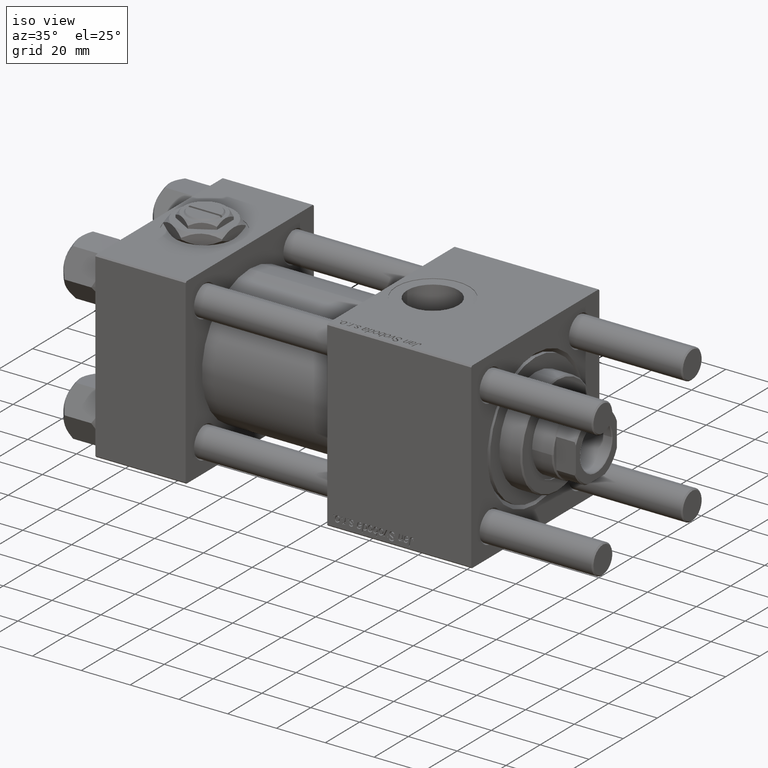
[diagram: clean part render]
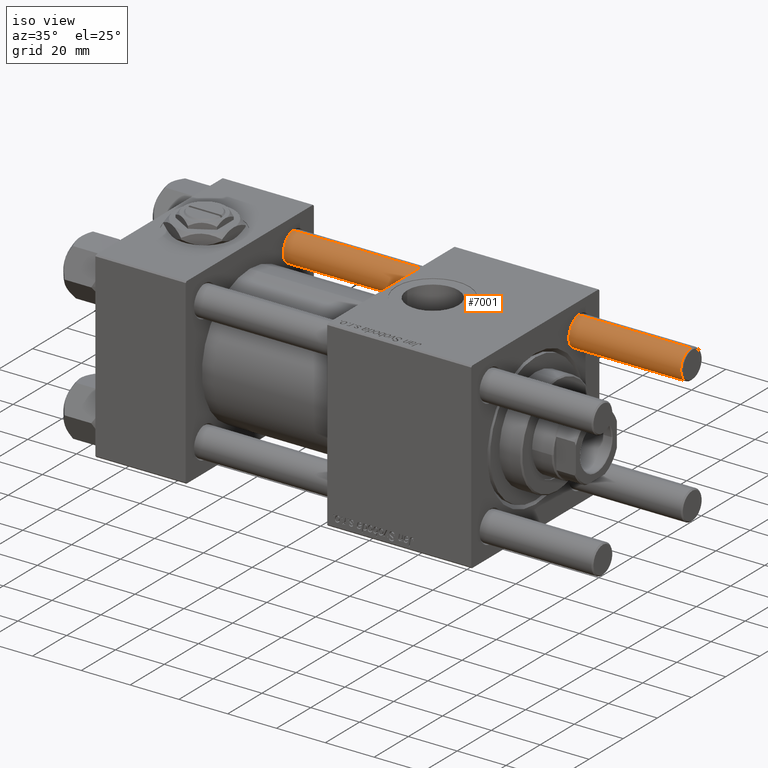
[diagram: same view with one face highlighted and labeled with its STEP entity id]
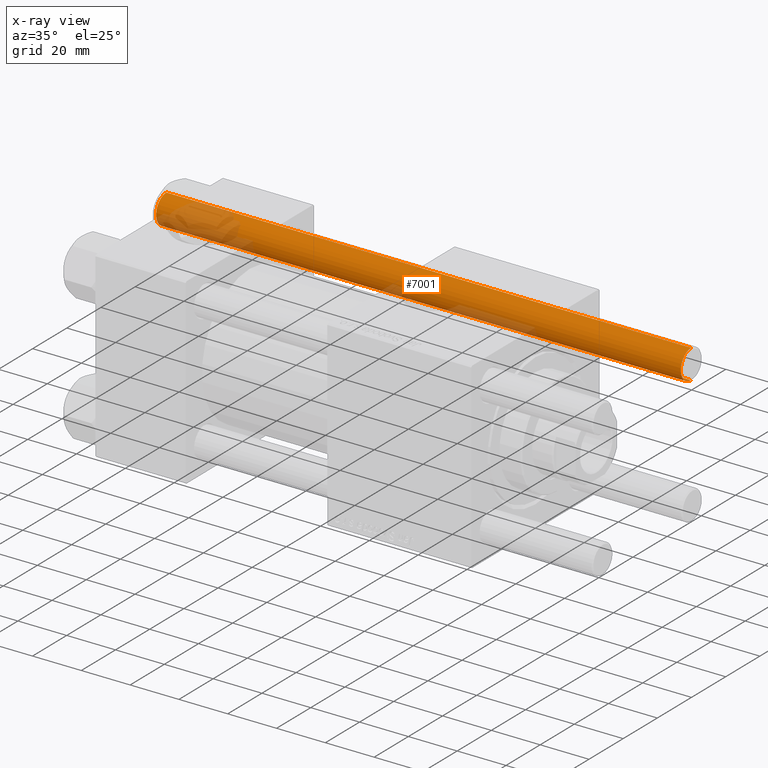
[diagram: x-ray of the same camera — body ghosted, the highlighted face saturated]
A machine part, iso view. The second image highlights one B-rep face of the part: STEP entity #7001.
The next image is the same camera in x-ray: the body ghosted, the highlighted face saturated — about 19% of this face is hidden behind the body in this view.
In plain terms, the highlighted cylindrical surface (edge-blend (fillet) strip) has radius 6 mm, axis along (1, -0, -0).
Its self-contained STEP definition (entity closure, byte-faithful):
#353 = AXIS2_PLACEMENT_3D ( 'NONE', #28200, #29076, #46293 ) ;
#2322 = ORIENTED_EDGE ( 'NONE', *, *, #34343, .T. ) ;
#5942 = ORIENTED_EDGE ( 'NONE', *, *, #6386, .T. ) ;
#6386 = EDGE_CURVE ( 'NONE', #39373, #20123, #48191, .T. ) ;
#7001 = ADVANCED_FACE ( 'NONE', ( #12034 ), #48256, .T. ) ;
#7577 = DIRECTION ( 'NONE',  ( -1.000000000000000000, 0.000000000000000000, 0.000000000000000000 ) ) ;
#9448 = CARTESIAN_POINT ( 'NONE',  ( -6.000000000000000888, 0.000000000000000000, 215.5000000000000284 ) ) ;
#12034 = FACE_OUTER_BOUND ( 'NONE', #41527, .T. ) ;
#12573 = CARTESIAN_POINT ( 'NONE',  ( 6.000000000000000888, 7.347880794884120722E-16, 216.0000000000000000 ) ) ;
#12744 = VERTEX_POINT ( 'NONE', #37180 ) ;
#12793 = ORIENTED_EDGE ( 'NONE', *, *, #19645, .F. ) ;
#15653 = CARTESIAN_POINT ( 'NONE',  ( 6.000000000000000888, 7.347880794884120722E-16, 215.5000000000000284 ) ) ;
#16308 = CARTESIAN_POINT ( 'NONE',  ( -6.000000000000000888, 0.000000000000000000, 216.0000000000000000 ) ) ;
#16929 = AXIS2_PLACEMENT_3D ( 'NONE', #24571, #42922, #7577 ) ;
#18239 = VECTOR ( 'NONE', #44328, 1000.000000000000000 ) ;
#19645 = EDGE_CURVE ( 'NONE', #39373, #43567, #35143, .T. ) ;
#20123 = VERTEX_POINT ( 'NONE', #9448 ) ;
#23529 = VECTOR ( 'NONE', #24949, 1000.000000000000000 ) ;
#24571 = CARTESIAN_POINT ( 'NONE',  ( 0.000000000000000000, 0.000000000000000000, 216.0000000000000000 ) ) ;
#24949 = DIRECTION ( 'NONE',  ( -0.000000000000000000, -0.000000000000000000, -1.000000000000000000 ) ) ;
#26744 = ORIENTED_EDGE ( 'NONE', *, *, #52316, .T. ) ;
#28200 = CARTESIAN_POINT ( 'NONE',  ( 0.000000000000000000, 0.000000000000000000, 0.5000000000000004441 ) ) ;
#29076 = DIRECTION ( 'NONE',  ( -0.000000000000000000, -0.000000000000000000, 1.000000000000000000 ) ) ;
#29960 = LINE ( 'NONE', #16308, #23529 ) ;
#33732 = CARTESIAN_POINT ( 'NONE',  ( 6.000000000000000888, 7.347880794884120722E-16, 0.5000000000000004441 ) ) ;
#34343 = EDGE_CURVE ( 'NONE', #12744, #43567, #38274, .T. ) ;
#35143 = LINE ( 'NONE', #12573, #18239 ) ;
#37180 = CARTESIAN_POINT ( 'NONE',  ( -6.000000000000000888, 0.000000000000000000, 0.5000000000000004441 ) ) ;
#38187 = CARTESIAN_POINT ( 'NONE',  ( 0.000000000000000000, 0.000000000000000000, 215.5000000000000284 ) ) ;
#38274 = CIRCLE ( 'NONE', #353, 6.000000000000000888 ) ;
#39373 = VERTEX_POINT ( 'NONE', #15653 ) ;
#41527 = EDGE_LOOP ( 'NONE', ( #12793, #5942, #26744, #2322 ) ) ;
#41538 = AXIS2_PLACEMENT_3D ( 'NONE', #38187, #47100, #56878 ) ;
#42922 = DIRECTION ( 'NONE',  ( -0.000000000000000000, -0.000000000000000000, -1.000000000000000000 ) ) ;
#43567 = VERTEX_POINT ( 'NONE', #33732 ) ;
#44328 = DIRECTION ( 'NONE',  ( -0.000000000000000000, -0.000000000000000000, -1.000000000000000000 ) ) ;
#46293 = DIRECTION ( 'NONE',  ( 1.000000000000000000, 0.000000000000000000, 0.000000000000000000 ) ) ;
#47100 = DIRECTION ( 'NONE',  ( 0.000000000000000000, 0.000000000000000000, -1.000000000000000000 ) ) ;
#48191 = CIRCLE ( 'NONE', #41538, 6.000000000000000888 ) ;
#48256 = CYLINDRICAL_SURFACE ( 'NONE', #16929, 6.000000000000000888 ) ;
#52316 = EDGE_CURVE ( 'NONE', #20123, #12744, #29960, .T. ) ;
#56878 = DIRECTION ( 'NONE',  ( 1.000000000000000000, 0.000000000000000000, 0.000000000000000000 ) ) ;